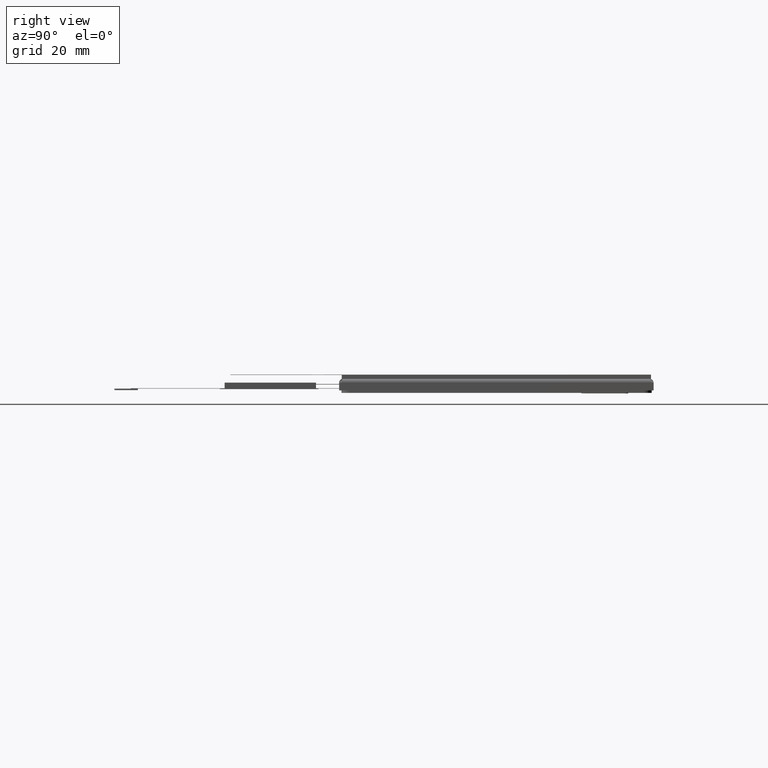
[diagram: clean part render]
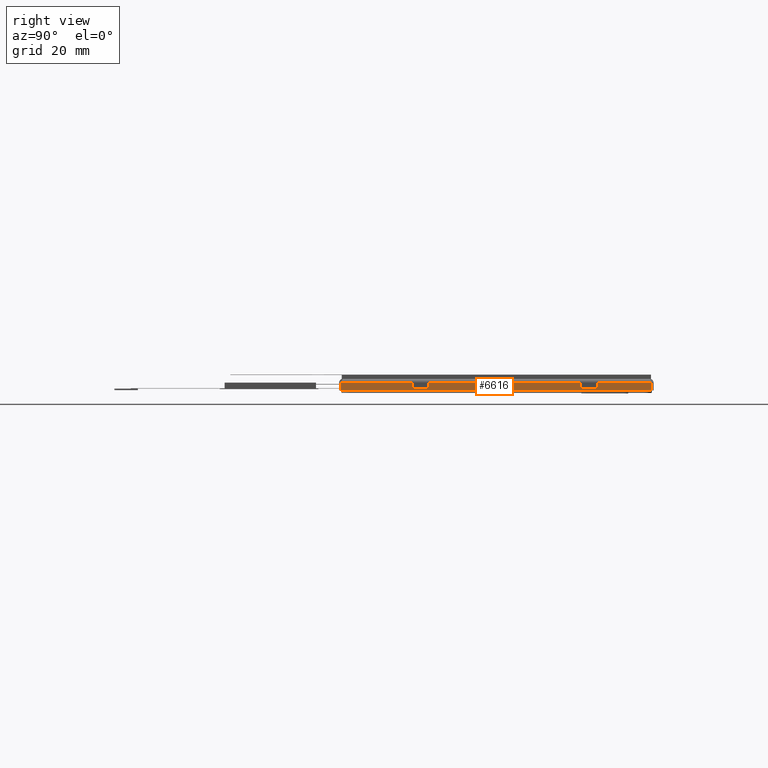
[diagram: same view with one face highlighted and labeled with its STEP entity id]
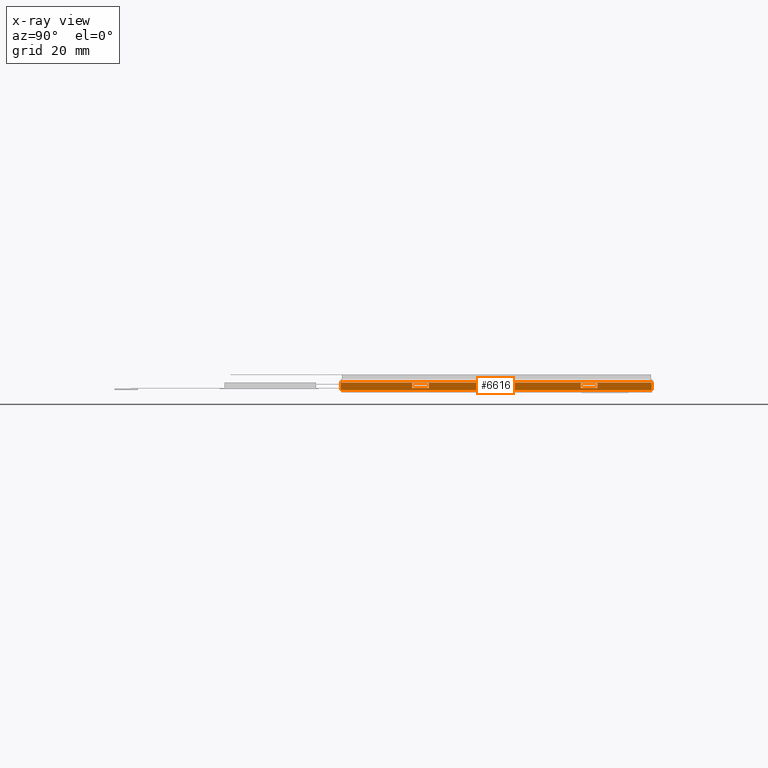
[diagram: x-ray of the same camera — body ghosted, the highlighted face saturated]
A machine part, right view. The second image highlights one B-rep face of the part: STEP entity #6616.
The next image is the same camera in x-ray: the body ghosted, the highlighted face saturated — about 0% of this face is hidden behind the body in this view.
In plain terms, the highlighted planar face has unit normal (1, -0, 0).
Its self-contained STEP definition (entity closure, byte-faithful):
#58=FACE_BOUND('',#828,.T.);
#59=FACE_BOUND('',#829,.T.);
#144=PLANE('',#7028);
#468=FACE_OUTER_BOUND('',#827,.T.);
#827=EDGE_LOOP('',(#5049,#5050,#5051,#5052));
#828=EDGE_LOOP('',(#5053,#5054,#5055,#5056));
#829=EDGE_LOOP('',(#5057,#5058,#5059,#5060));
#1311=LINE('',#9589,#2204);
#1315=LINE('',#9597,#2208);
#1319=LINE('',#9605,#2212);
#1323=LINE('',#9612,#2216);
#1328=LINE('',#9622,#2221);
#1332=LINE('',#9630,#2225);
#1336=LINE('',#9638,#2229);
#1340=LINE('',#9645,#2233);
#1343=LINE('',#9652,#2236);
#1347=LINE('',#9658,#2240);
#1350=LINE('',#9663,#2243);
#1351=LINE('',#9664,#2244);
#2204=VECTOR('',#7754,1.05);
#2208=VECTOR('',#7762,3.6);
#2212=VECTOR('',#7770,1.05);
#2216=VECTOR('',#7778,3.6);
#2221=VECTOR('',#7787,1.05);
#2225=VECTOR('',#7795,3.6);
#2229=VECTOR('',#7803,1.05);
#2233=VECTOR('',#7811,3.6);
#2236=VECTOR('',#7818,66.3);
#2240=VECTOR('',#7824,1.67);
#2243=VECTOR('',#7829,66.3);
#2244=VECTOR('',#7830,1.67);
#3132=VERTEX_POINT('',#9586);
#3133=VERTEX_POINT('',#9588);
#3135=VERTEX_POINT('',#9596);
#3137=VERTEX_POINT('',#9604);
#3140=VERTEX_POINT('',#9619);
#3141=VERTEX_POINT('',#9621);
#3143=VERTEX_POINT('',#9629);
#3145=VERTEX_POINT('',#9637);
#3147=VERTEX_POINT('',#9650);
#3148=VERTEX_POINT('',#9651);
#3149=VERTEX_POINT('',#9657);
#3150=VERTEX_POINT('',#9662);
#3830=EDGE_CURVE('',#3132,#3133,#1311,.T.);
#3834=EDGE_CURVE('',#3135,#3132,#1315,.T.);
#3838=EDGE_CURVE('',#3137,#3135,#1319,.T.);
#3842=EDGE_CURVE('',#3133,#3137,#1323,.T.);
#3847=EDGE_CURVE('',#3140,#3141,#1328,.T.);
#3851=EDGE_CURVE('',#3143,#3140,#1332,.T.);
#3855=EDGE_CURVE('',#3145,#3143,#1336,.T.);
#3859=EDGE_CURVE('',#3141,#3145,#1340,.T.);
#3862=EDGE_CURVE('',#3147,#3148,#1343,.T.);
#3866=EDGE_CURVE('',#3148,#3149,#1347,.T.);
#3869=EDGE_CURVE('',#3150,#3149,#1350,.T.);
#3870=EDGE_CURVE('',#3147,#3150,#1351,.T.);
#5049=ORIENTED_EDGE('',*,*,#3869,.F.);
#5050=ORIENTED_EDGE('',*,*,#3870,.F.);
#5051=ORIENTED_EDGE('',*,*,#3862,.T.);
#5052=ORIENTED_EDGE('',*,*,#3866,.T.);
#5053=ORIENTED_EDGE('',*,*,#3859,.F.);
#5054=ORIENTED_EDGE('',*,*,#3847,.F.);
#5055=ORIENTED_EDGE('',*,*,#3851,.F.);
#5056=ORIENTED_EDGE('',*,*,#3855,.F.);
#5057=ORIENTED_EDGE('',*,*,#3842,.F.);
#5058=ORIENTED_EDGE('',*,*,#3830,.F.);
#5059=ORIENTED_EDGE('',*,*,#3834,.F.);
#5060=ORIENTED_EDGE('',*,*,#3838,.F.);
#6616=ADVANCED_FACE('',(#468,#58,#59),#144,.T.);
#7028=AXIS2_PLACEMENT_3D('',#9661,#7827,#7828);
#7754=DIRECTION('',(0.,0.,1.));
#7762=DIRECTION('',(2.16453909658425E-16,1.,0.));
#7770=DIRECTION('',(0.,0.,-1.));
#7778=DIRECTION('',(-2.16453909658425E-16,-1.,0.));
#7787=DIRECTION('',(0.,0.,1.));
#7795=DIRECTION('',(2.16453909658425E-16,1.,0.));
#7803=DIRECTION('',(0.,0.,-1.));
#7811=DIRECTION('',(-2.16453909658425E-16,-1.,0.));
#7818=DIRECTION('',(2.16453909658425E-16,1.,0.));
#7824=DIRECTION('',(0.,0.,1.));
#7827=DIRECTION('center_axis',(1.,-2.16453909658425E-16,0.));
#7828=DIRECTION('ref_axis',(2.16453909658425E-16,1.,0.));
#7829=DIRECTION('',(2.16453909658425E-16,1.,0.));
#7830=DIRECTION('',(0.,0.,1.));
#9586=CARTESIAN_POINT('',(52.6999999999998,-16.7820000000002,-2.881410098791));
#9588=CARTESIAN_POINT('',(52.6999999999998,-16.7820000000002,-1.83141009879099));
#9589=CARTESIAN_POINT('',(52.6999999999998,-16.7820000000002,-2.881410098791));
#9596=CARTESIAN_POINT('',(52.6999999999998,-20.3820000000002,-2.881410098791));
#9597=CARTESIAN_POINT('',(52.6999999999998,-20.3820000000002,-2.881410098791));
#9604=CARTESIAN_POINT('',(52.6999999999998,-20.3820000000002,-1.83141009879099));
#9605=CARTESIAN_POINT('',(52.6999999999998,-20.3820000000002,-1.83141009879099));
#9612=CARTESIAN_POINT('',(52.6999999999998,-16.7820000000002,-1.83141009879099));
#9619=CARTESIAN_POINT('',(52.6999999999998,19.2379999999999,-2.881410098791));
#9621=CARTESIAN_POINT('',(52.6999999999998,19.2379999999999,-1.83141009879099));
#9622=CARTESIAN_POINT('',(52.6999999999998,19.2379999999999,-2.881410098791));
#9629=CARTESIAN_POINT('',(52.6999999999998,15.6379999999999,-2.881410098791));
#9630=CARTESIAN_POINT('',(52.6999999999998,15.6379999999999,-2.881410098791));
#9637=CARTESIAN_POINT('',(52.6999999999998,15.6379999999999,-1.83141009879099));
#9638=CARTESIAN_POINT('',(52.6999999999998,15.6379999999999,-1.83141009879099));
#9645=CARTESIAN_POINT('',(52.6999999999998,19.2379999999999,-1.83141009879099));
#9650=CARTESIAN_POINT('',(52.6999999999998,-35.5220000000001,-3.37));
#9651=CARTESIAN_POINT('',(52.6999999999998,30.7779999999998,-3.37));
#9652=CARTESIAN_POINT('',(52.6999999999998,-35.5220000000001,-3.37));
#9657=CARTESIAN_POINT('',(52.6999999999998,30.7779999999998,-1.7));
#9658=CARTESIAN_POINT('',(52.6999999999998,30.7779999999998,-3.37));
#9661=CARTESIAN_POINT('Origin',(52.6999999999998,-35.9220000000002,-3.37));
#9662=CARTESIAN_POINT('',(52.6999999999998,-35.5220000000001,-1.7));
#9663=CARTESIAN_POINT('',(52.6999999999998,-35.5220000000001,-1.7));
#9664=CARTESIAN_POINT('',(52.6999999999998,-35.5220000000001,-3.37));